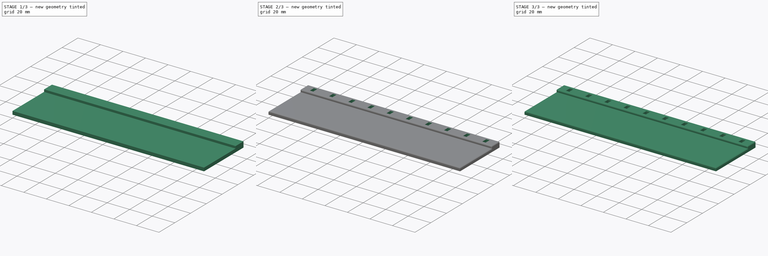
[diagram: build sequence overview — one tinted view per stage of 3, left to right]
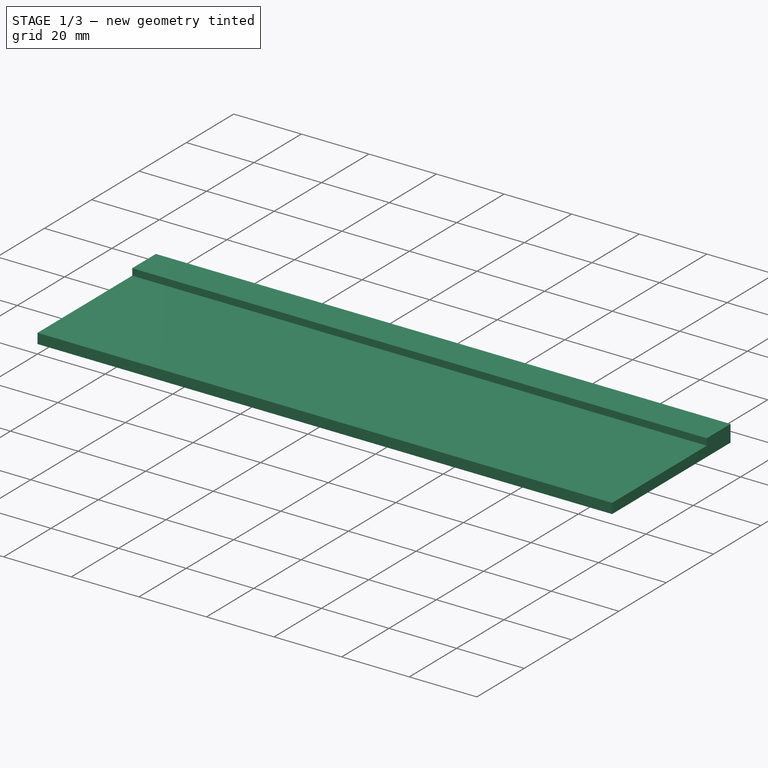
[diagram: stage 1 of 3 — iso view after this stage's code; geometry added in this stage tinted green]
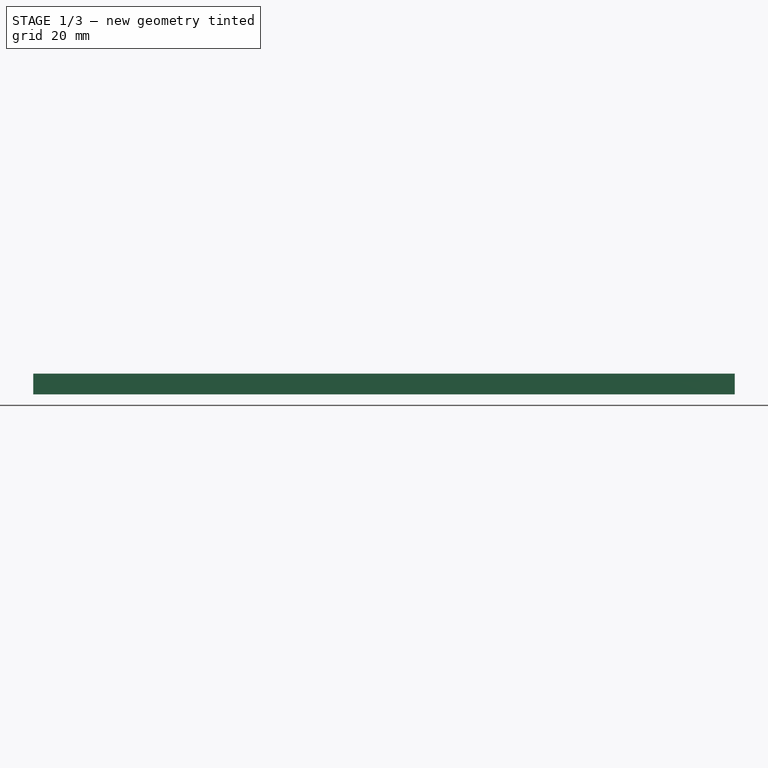
[diagram: stage 1 of 3 — front view after this stage's code; geometry added in this stage tinted green]
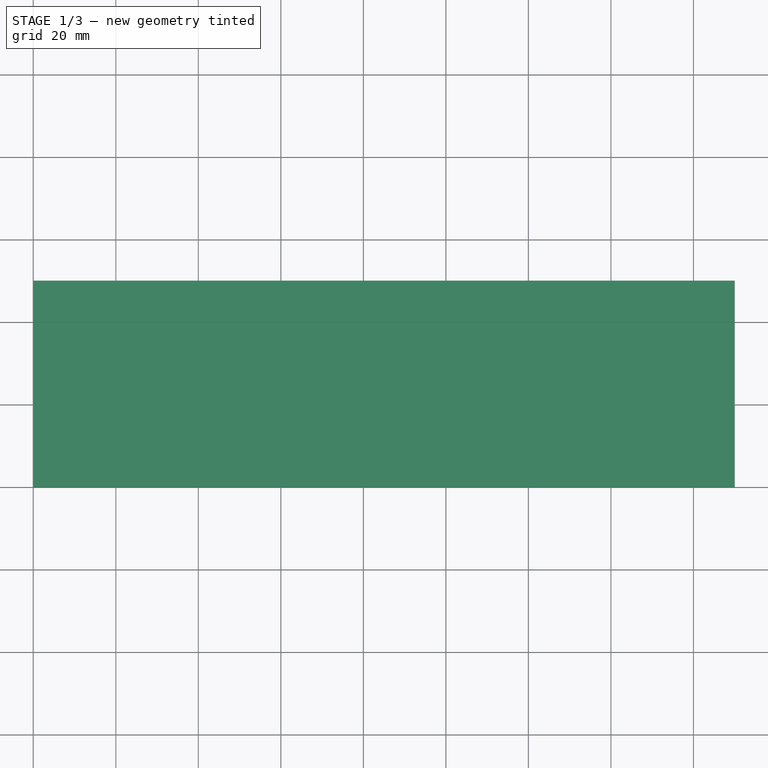
[diagram: stage 1 of 3 — top view after this stage's code; geometry added in this stage tinted green]
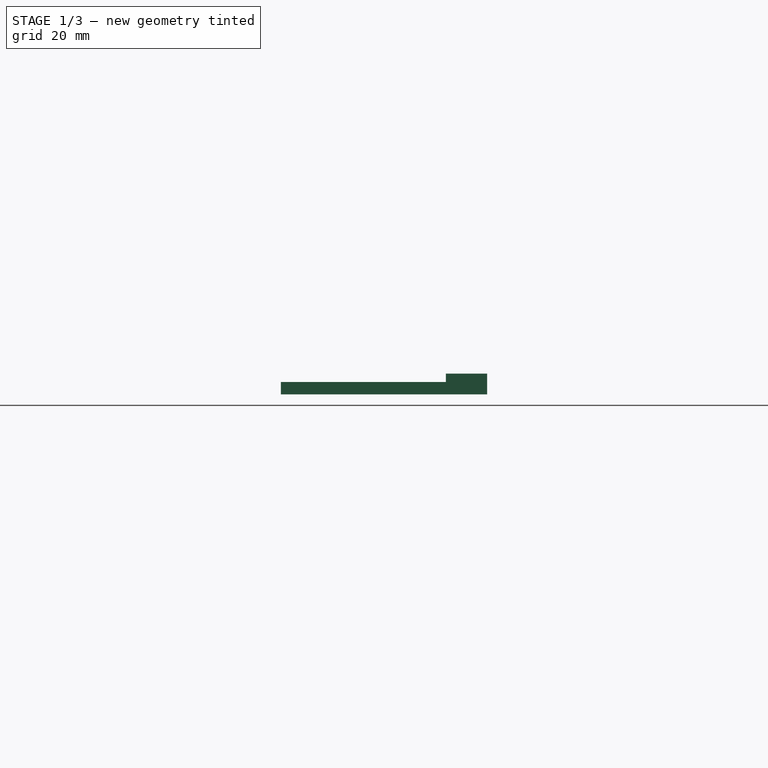
[diagram: stage 1 of 3 — right view after this stage's code; geometry added in this stage tinted green]
FCSTD DOCUMENT  (FreeCAD 0.19R)
Label: balkonkasten
License: All rights reserved
LicenseURL: http://en.wikipedia.org/wiki/All_rights_reserved
objects: Sketcher::SketchObject×3, PartDesign::Fillet×3, PartDesign::Pocket×2, PartDesign::Pad×1, PartDesign::Body×1
note: 16 computed .brp shape members not serialized (recipe doc carries the construction recipe); baked Part::Feature solids carry a one-line shape summary decoded from their .brp

FEATURE [Sketcher::SketchObject] Sketch
  FullyConstrained = true
  MapMode = 5
  Support = -> [XY_Plane]
  sketch-geometry (4):
    g0: LineSegment StartX=0 StartY=50 StartZ=0 EndX=170 EndY=50 EndZ=0
    g1: LineSegment StartX=170 StartY=50 StartZ=0 EndX=170 EndY=0 EndZ=0
    g2: LineSegment StartX=170 StartY=0 StartZ=0 EndX=0 EndY=0 EndZ=0
    g3: LineSegment StartX=0 StartY=0 StartZ=0 EndX=0 EndY=50 EndZ=0
  constraints (11):
    c: Coincident(g0,g1)
    c: Coincident(g1,g2)
    c: Coincident(g2,g3)
    c: Coincident(g3,g0)
    c: Horizontal(g0)
    c: Horizontal(g2)
    c: Vertical(g1)
    c: Vertical(g3)
    c: Coincident(g-1,g2)
    c: DistanceY(g1,g1) = 50
    c: DistanceX(g0,g0) = 170
FEATURE [PartDesign::Pad] Pad
  Direction = (1,1,1)
  Length = 5
  Length2 = 100
  Profile = -> Sketch
  Type = 0
FEATURE [Sketcher::SketchObject] Sketch001
  FullyConstrained = true
  MapMode = 5
  Placement = pos=(0,0,5) rot=(0,0,1;0rad)
  Support = -> [Pad]
  sketch-geometry (4):
    g0: LineSegment StartX=0 StartY=40 StartZ=0 EndX=170 EndY=40 EndZ=0
    g1: LineSegment StartX=170 StartY=40 StartZ=0 EndX=170 EndY=0 EndZ=0
    g2: LineSegment StartX=170 StartY=0 StartZ=0 EndX=0 EndY=0 EndZ=0
    g3: LineSegment StartX=0 StartY=0 StartZ=0 EndX=0 EndY=40 EndZ=0
  constraints (11):
    c: Coincident(g0,g1)
    c: Coincident(g1,g2)
    c: Coincident(g2,g3)
    c: Coincident(g3,g0)
    c: Horizontal(g0)
    c: Horizontal(g2)
    c: Vertical(g1)
    c: Vertical(g3)
    c: Coincident(g2,g-1)
    c: DistanceX(g2,g2) = 170
    c: DistanceY(g1,g1) = 40
FEATURE [PartDesign::Pocket] Pocket
  BaseFeature = -> Pad
  Length = 2
  Length2 = 100
  Profile = -> Sketch001
  Type = 0
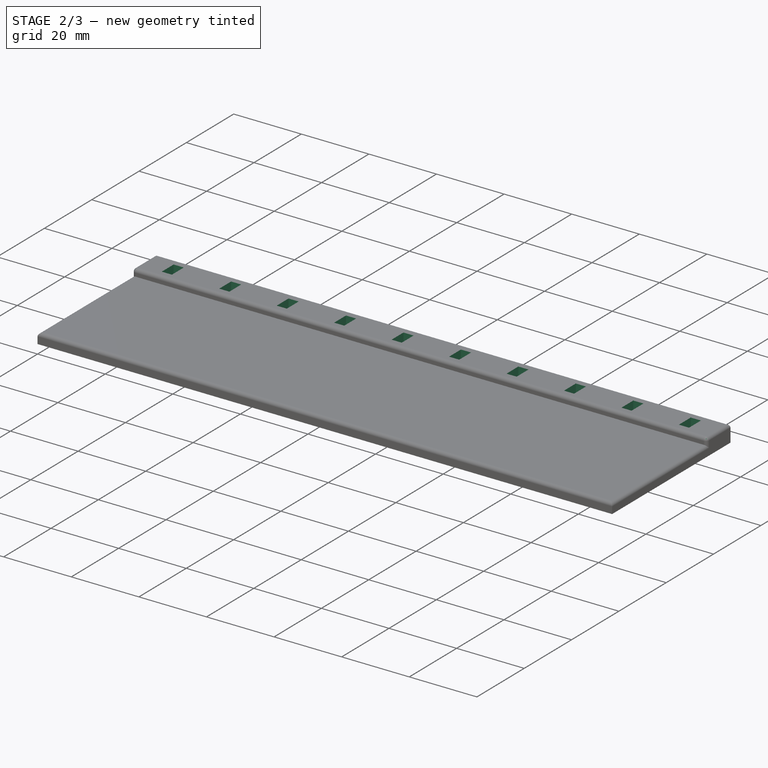
[diagram: stage 2 of 3 — iso view after this stage's code; geometry added in this stage tinted green]
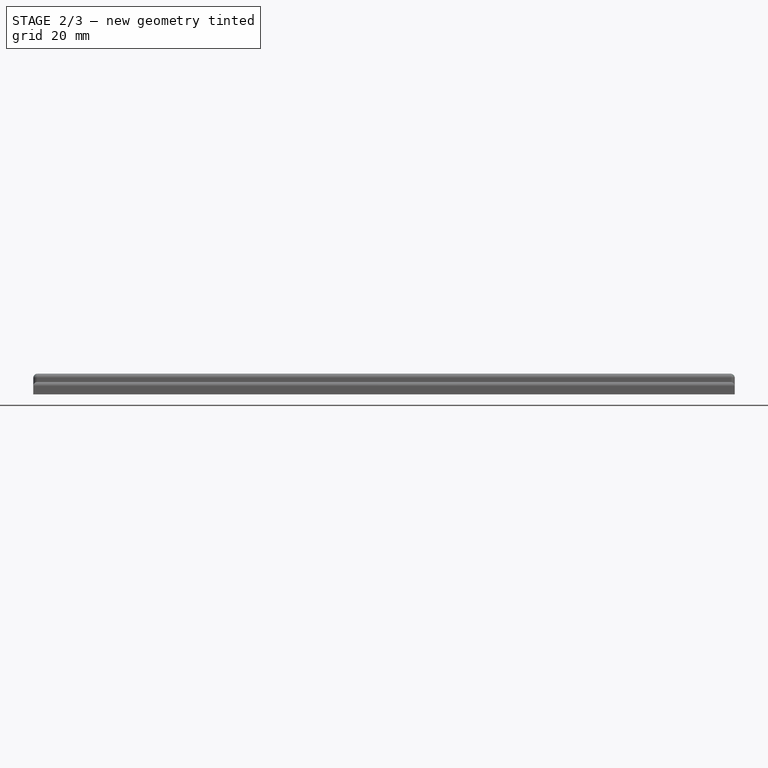
[diagram: stage 2 of 3 — front view after this stage's code; geometry added in this stage tinted green]
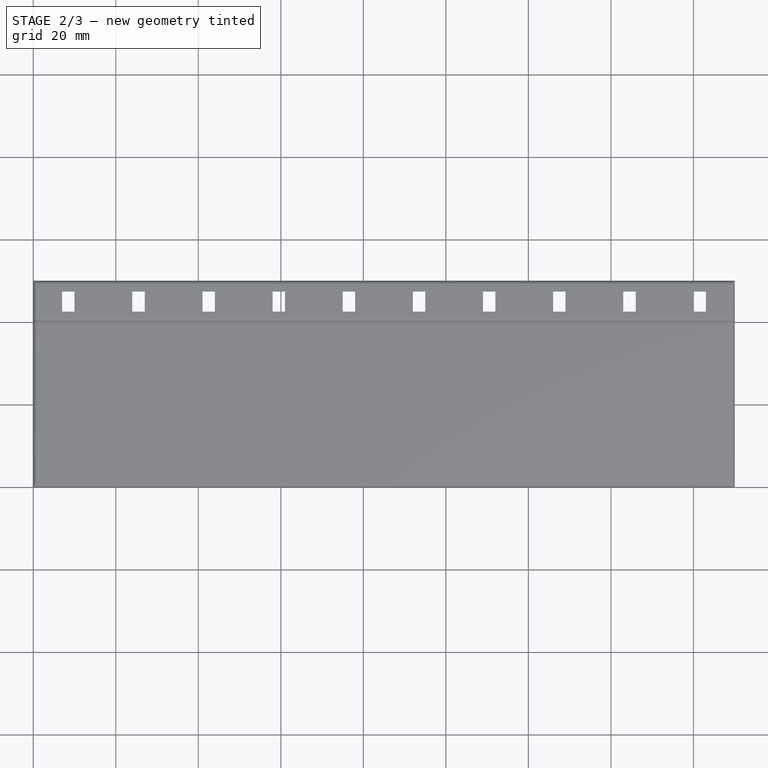
[diagram: stage 2 of 3 — top view after this stage's code; geometry added in this stage tinted green]
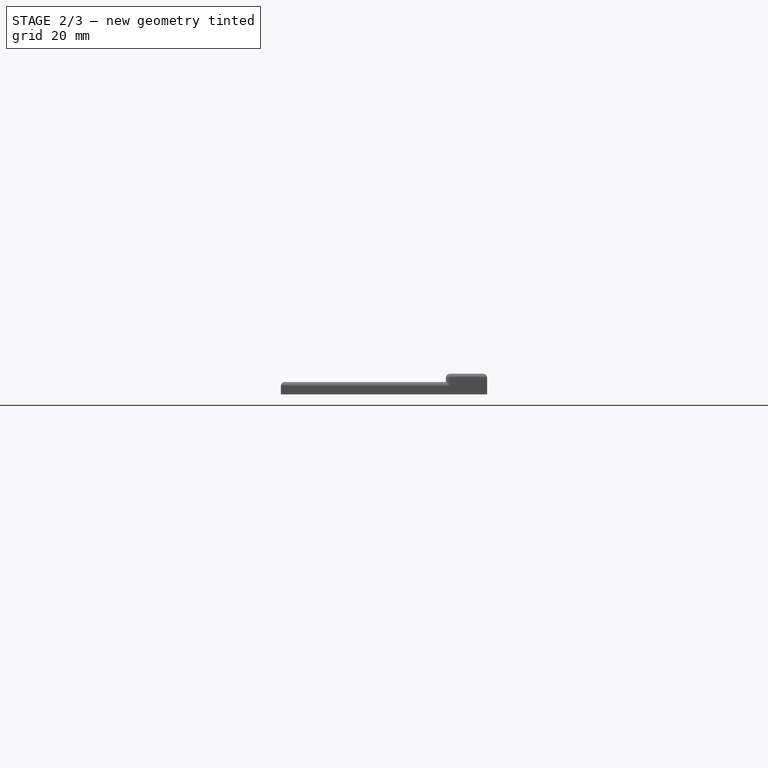
[diagram: stage 2 of 3 — right view after this stage's code; geometry added in this stage tinted green]
FEATURE [PartDesign::Fillet] Fillet
  Base = -> Pocket [Edge8,Edge18,Edge12,Edge16,Edge14,Edge4,Edge6,Edge7,Edge13]
  BaseFeature = -> Pocket
  Radius = 1
  SupportTransform = false
FEATURE [Sketcher::SketchObject] Sketch002
  FullyConstrained = true
  MapMode = 5
  Placement = pos=(0,0,5) rot=(0,0,1;0rad)
  Support = -> [Fillet]
  sketch-geometry (40):
    g0: LineSegment StartX=7 StartY=47.5 StartZ=0 EndX=10 EndY=47.5 EndZ=0
    g1: LineSegment StartX=10 StartY=47.5 StartZ=0 EndX=10 EndY=42.5 EndZ=0
    g2: LineSegment StartX=10 StartY=42.5 StartZ=0 EndX=7 EndY=42.5 EndZ=0
    g3: LineSegment StartX=7 StartY=42.5 StartZ=0 EndX=7 EndY=47.5 EndZ=0
    g4: LineSegment StartX=24 StartY=47.5 StartZ=0 EndX=27 EndY=47.5 EndZ=0
    g5: LineSegment StartX=27 StartY=47.5 StartZ=0 EndX=27 EndY=42.5 EndZ=0
    g6: LineSegment StartX=27 StartY=42.5 StartZ=0 EndX=24 EndY=42.5 EndZ=0
    g7: LineSegment StartX=24 StartY=42.5 StartZ=0 EndX=24 EndY=47.5 EndZ=0
    g8: LineSegment StartX=41 StartY=47.5 StartZ=0 EndX=44 EndY=47.5 EndZ=0
    g9: LineSegment StartX=44 StartY=47.5 StartZ=0 EndX=44 EndY=42.5 EndZ=0
    g10: LineSegment StartX=44 StartY=42.5 StartZ=0 EndX=41 EndY=42.5 EndZ=0
    g11: LineSegment StartX=41 StartY=42.5 StartZ=0 EndX=41 EndY=47.5 EndZ=0
    g12: LineSegment StartX=160 StartY=47.5 StartZ=0 EndX=163 EndY=47.5 EndZ=0
    g13: LineSegment StartX=163 StartY=47.5 StartZ=0 EndX=163 EndY=42.5 EndZ=0
    g14: LineSegment StartX=163 StartY=42.5 StartZ=0 EndX=160 EndY=42.5 EndZ=0
    g15: LineSegment StartX=160 StartY=42.5 StartZ=0 EndX=160 EndY=47.5 EndZ=0
    g16: LineSegment StartX=58 StartY=47.5 StartZ=0 EndX=61 EndY=47.5 EndZ=0
    g17: LineSegment StartX=61 StartY=47.5 StartZ=0 EndX=61 EndY=42.5 EndZ=0
    g18: LineSegment StartX=61 StartY=42.5 StartZ=0 EndX=58 EndY=42.5 EndZ=0
    g19: LineSegment StartX=58 StartY=42.5 StartZ=0 EndX=58 EndY=47.5 EndZ=0
    g20: LineSegment StartX=75 StartY=47.5 StartZ=0 EndX=78 EndY=47.5 EndZ=0
    g21: LineSegment StartX=78 StartY=47.5 StartZ=0 EndX=78 EndY=42.5 EndZ=0
    g22: LineSegment StartX=78 StartY=42.5 StartZ=0 EndX=75 EndY=42.5 EndZ=0
    g23: LineSegment StartX=75 StartY=42.5 StartZ=0 EndX=75 EndY=47.5 EndZ=0
    g24: LineSegment StartX=92 StartY=47.5 StartZ=0 EndX=95 EndY=47.5 EndZ=0
    g25: LineSegment StartX=95 StartY=47.5 StartZ=0 EndX=95 EndY=42.5 EndZ=0
    g26: LineSegment StartX=95 StartY=42.5 StartZ=0 EndX=92 EndY=42.5 EndZ=0
    g27: LineSegment StartX=92 StartY=42.5 StartZ=0 EndX=92 EndY=47.5 EndZ=0
    g28: LineSegment StartX=109 StartY=47.5 StartZ=0 EndX=112 EndY=47.5 EndZ=0
    g29: LineSegment StartX=112 StartY=47.5 StartZ=0 EndX=112 EndY=42.5 EndZ=0
    g30: LineSegment StartX=112 StartY=42.5 StartZ=0 EndX=109 EndY=42.5 EndZ=0
    g31: LineSegment StartX=109 StartY=42.5 StartZ=0 EndX=109 EndY=47.5 EndZ=0
    g32: LineSegment StartX=126 StartY=47.5 StartZ=0 EndX=129 EndY=47.5 EndZ=0
    g33: LineSegment StartX=129 StartY=47.5 StartZ=0 EndX=129 EndY=42.5 EndZ=0
    g34: LineSegment StartX=129 StartY=42.5 StartZ=0 EndX=126 EndY=42.5 EndZ=0
    g35: LineSegment StartX=126 StartY=42.5 StartZ=0 EndX=126 EndY=47.5 EndZ=0
    g36: LineSegment StartX=143 StartY=47.5 StartZ=0 EndX=146 EndY=47.5 EndZ=0
    g37: LineSegment StartX=146 StartY=47.5 StartZ=0 EndX=146 EndY=42.5 EndZ=0
    g38: LineSegment StartX=146 StartY=42.5 StartZ=0 EndX=143 EndY=42.5 EndZ=0
    g39: LineSegment StartX=143 StartY=42.5 StartZ=0 EndX=143 EndY=47.5 EndZ=0
  constraints (120):
    c: Coincident(g0,g1)
    c: Coincident(g1,g2)
    c: Coincident(g2,g3)
    c: Coincident(g3,g0)
    c: Horizontal(g0)
    c: Horizontal(g2)
    c: Vertical(g1)
    c: Vertical(g3)
    c: DistanceX(g0,g0) = 3
    c: DistanceY(g1,g1) = 5
    c: DistanceY(g-1,g2) = 42.5
    c: DistanceX(g-1,g2) = 7
    c: Coincident(g4,g5)
    c: Coincident(g5,g6)
    c: Coincident(g6,g7)
    c: Coincident(g7,g4)
    c: Horizontal(g4)
    c: Horizontal(g6)
    c: Vertical(g5)
    c: Vertical(g7)
    c: Equal(g3,g7)
    c: Equal(g4,g0)
    c: Horizontal(g1,g6)
    c: Coincident(g8,g9)
    c: Coincident(g9,g10)
    c: Coincident(g10,g11)
    c: Coincident(g11,g8)
    c: Horizontal(g8)
    c: Horizontal(g10)
    c: Vertical(g9)
    c: Vertical(g11)
    c: Coincident(g12,g13)
    c: Coincident(g13,g14)
    c: Coincident(g14,g15)
    c: Coincident(g15,g12)
    c: Horizontal(g12)
    c: Horizontal(g14)
    c: Vertical(g13)
    c: Vertical(g15)
    c: Coincident(g16,g17)
    c: Coincident(g17,g18)
    c: Coincident(g18,g19)
    c: Coincident(g19,g16)
    c: Horizontal(g16)
    c: Horizontal(g18)
    c: Vertical(g17)
    c: Vertical(g19)
    c: Coincident(g20,g21)
    c: Coincident(g21,g22)
    c: Coincident(g22,g23)
    c: Coincident(g23,g20)
    c: Horizontal(g20)
    c: Horizontal(g22)
    c: Vertical(g21)
    c: Vertical(g23)
    c: Coincident(g24,g25)
    c: Coincident(g25,g26)
    c: Coincident(g26,g27)
    c: Coincident(g27,g24)
    c: Horizontal(g24)
    c: Horizontal(g26)
    c: Vertical(g25)
    c: Vertical(g27)
    c: Coincident(g28,g29)
    c: Coincident(g29,g30)
    c: Coincident(g30,g31)
    c: Coincident(g31,g28)
    c: Horizontal(g28)
    c: Horizontal(g30)
    c: Vertical(g29)
    c: Vertical(g31)
    c: Coincident(g32,g33)
    c: Coincident(g33,g34)
    c: Coincident(g34,g35)
    c: Coincident(g35,g32)
    c: Horizontal(g32)
    c: Horizontal(g34)
    c: Vertical(g33)
    c: Vertical(g35)
    c: Coincident(g36,g37)
    c: Coincident(g37,g38)
    c: Coincident(g38,g39)
    c: Coincident(g39,g36)
    c: Horizontal(g36)
    c: Horizontal(g38)
    c: Vertical(g37)
    c: Vertical(g39)
    c: Equal(g4,g8)
    c: Equal(g8,g12)
    c: Equal(g12,g16)
    c: Equal(g16,g20)
    c: Equal(g20,g24)
    c: Equal(g24,g28)
    c: Equal(g28,g32)
    c: Equal(g32,g36)
    c: Equal(g5,g9)
    c: Equal(g9,g13)
    c: Equal(g13,g17)
    c: Equal(g17,g21)
    c: Equal(g21,g25)
    c: Equal(g25,g29)
    c: Equal(g29,g33)
    c: Equal(g33,g37)
    c: Horizontal(g4,g8)
    c: Horizontal(g8,g12)
    c: Horizontal(g12,g16)
    c: Horizontal(g16,g20)
    c: Horizontal(g20,g24)
    c: Horizontal(g24,g28)
    c: Horizontal(g28,g32)
    c: Horizontal(g32,g36)
    c: DistanceX(g1,g6) = 14
    c: DistanceX(g5,g10) = 14
    c: DistanceX(g37,g14) = 14
    c: DistanceX(g33,g38) = 14
    c: DistanceX(g29,g34) = 14
    c: DistanceX(g25,g30) = 14
    c: DistanceX(g21,g26) = 14
    c: DistanceX(g17,g22) = 14
    c: DistanceX(g9,g18) = 14
FEATURE [PartDesign::Pocket] Pocket001
  BaseFeature = -> Fillet
  Length = 5
  Length2 = 100
  Profile = -> Sketch002
  Type = 1
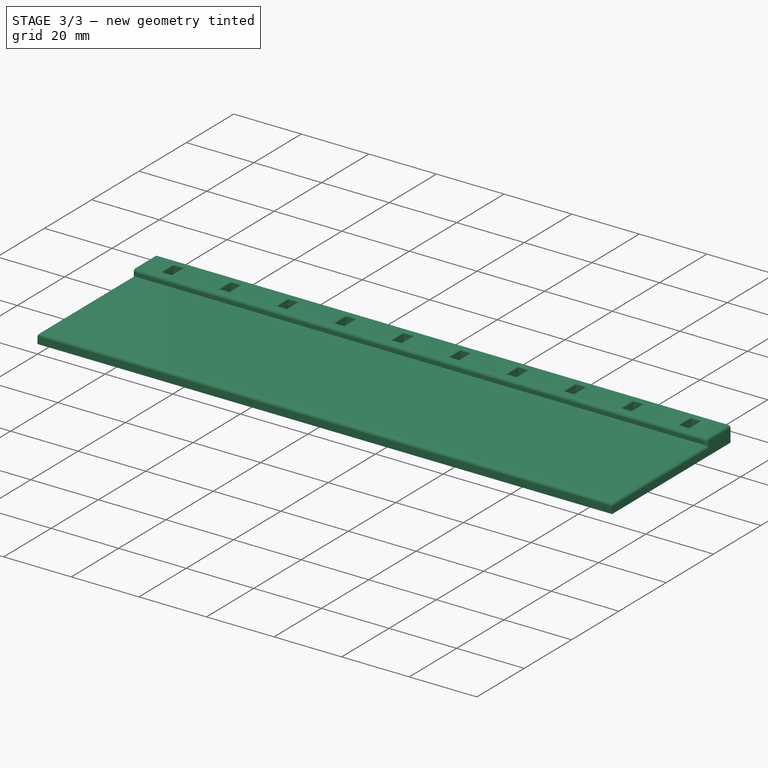
[diagram: stage 3 of 3 — iso view after this stage's code; geometry added in this stage tinted green]
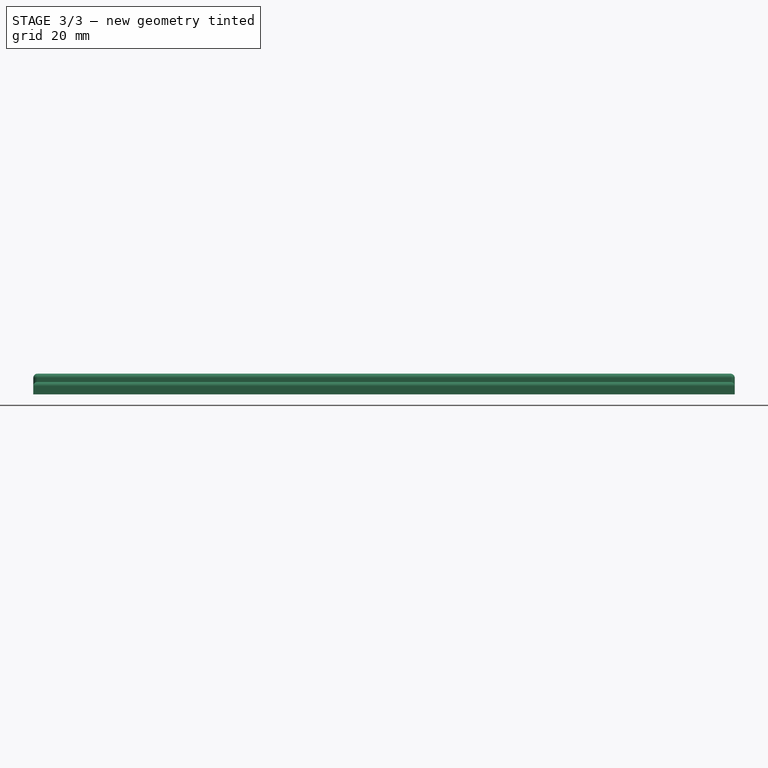
[diagram: stage 3 of 3 — front view after this stage's code; geometry added in this stage tinted green]
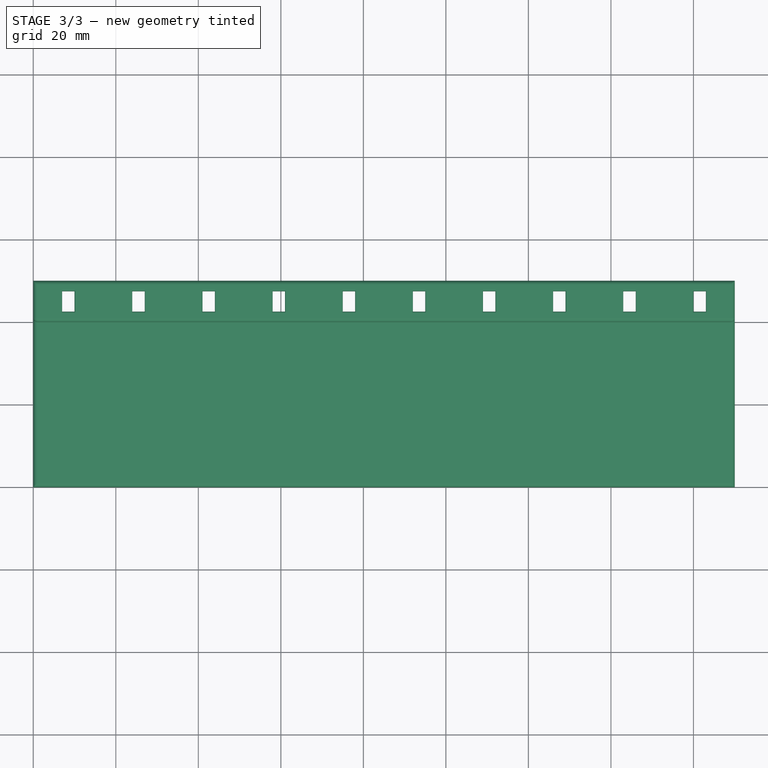
[diagram: stage 3 of 3 — top view after this stage's code; geometry added in this stage tinted green]
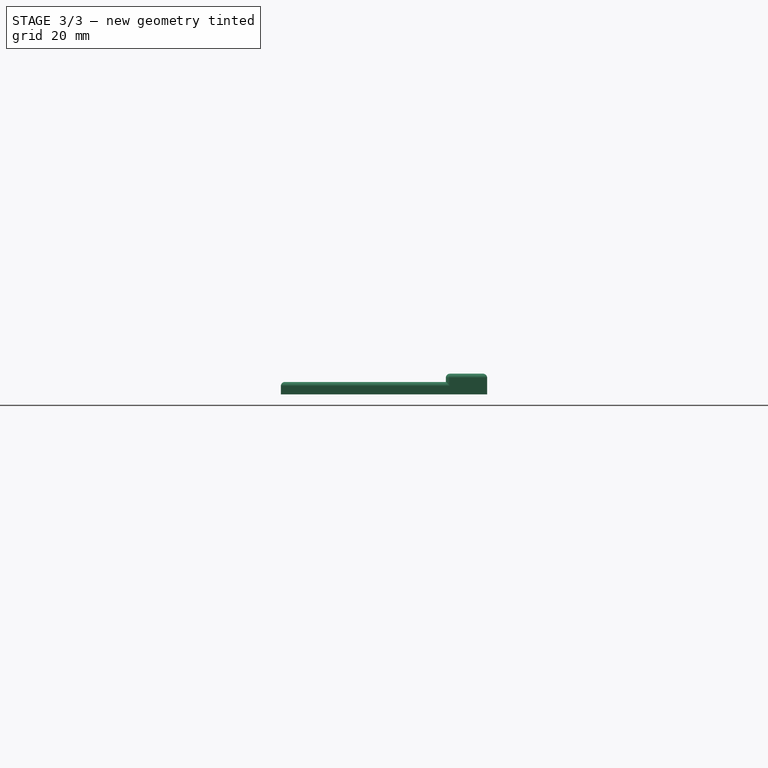
[diagram: stage 3 of 3 — right view after this stage's code; geometry added in this stage tinted green]
FEATURE [PartDesign::Fillet] Fillet001
  Base = -> Pocket001 [Edge106,Edge107,Edge108,Edge105,Edge101,Edge104,Edge103,Edge102,Edge100,Edge97,Edge98,Edge99,Edge93,Edge96,Edge94,Edge95,Edge89,Edge92,Edge91,Edge90,Edge88,Edge85,Edge86,Edge87,Edge81,Edge84,Edge82,Edge83,Edge77,Edge80,Edge78,Edge79,Edge76,Edge73,Edge74,Edge75,Edge69,Edge72,Edge70,Edge71]
  BaseFeature = -> Pocket001
  Radius = 0.3
  SupportTransform = false
FEATURE [PartDesign::Fillet] Fillet002
  Base = -> Fillet001 [Edge142,Edge141,Edge136,Edge138,Edge168,Edge164,Edge162,Edge167,Edge172,Edge170,Edge176,Edge175,Edge180,Edge184,Edge183,Edge178,Edge192,Edge188,Edge186,Edge191,Edge194,Edge196,Edge200,Edge199,Edge208,Edge204,Edge202,Edge207,Edge216,Edge212,Edge210,Edge215,Edge218,Edge220,Edge224,Edge223,Edge232,Edge228,Edge231,Edge226]
  BaseFeature = -> Fillet001
  Radius = 0.3
  SupportTransform = false
FEATURE [PartDesign::Body] Body
  Group = -> [Sketch,Pad,Sketch001,Pocket,Fillet,Sketch002,Pocket001,Fillet001,Fillet002]
  Origin = -> Origin
  Tip = -> Fillet002
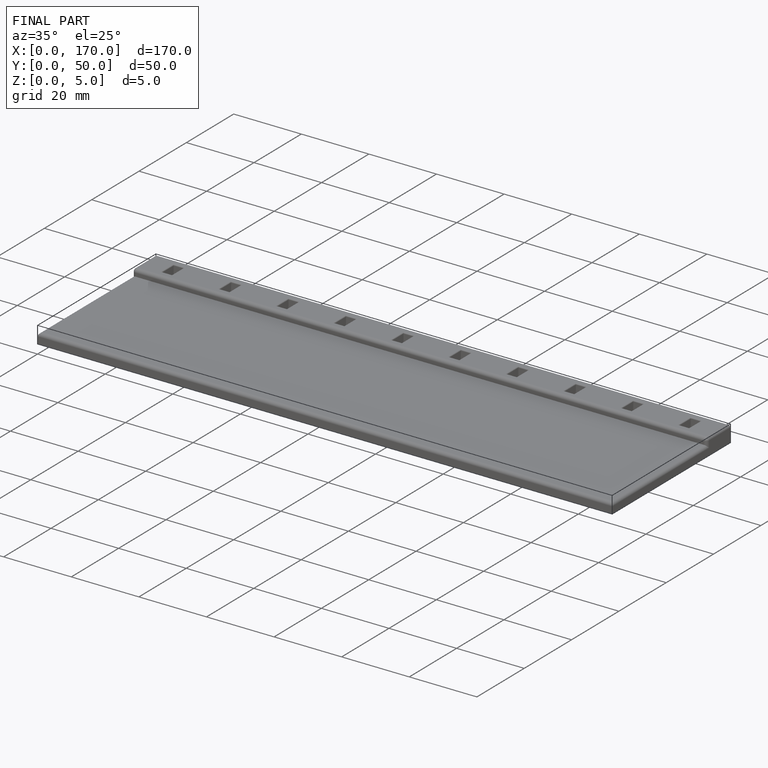
[diagram: finished part — iso view with bounding-box wireframe]
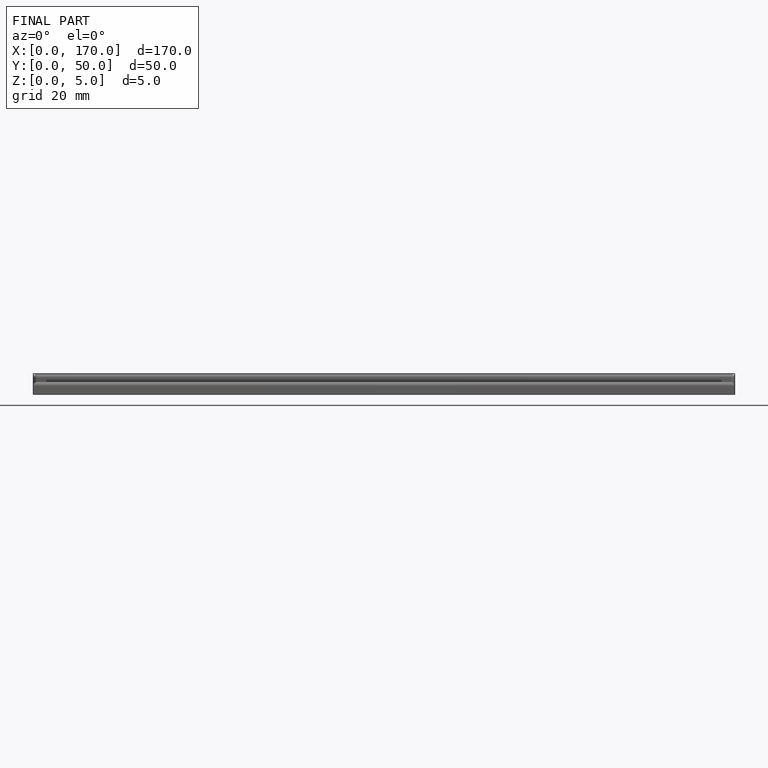
[diagram: finished part — front view with bounding-box wireframe]
